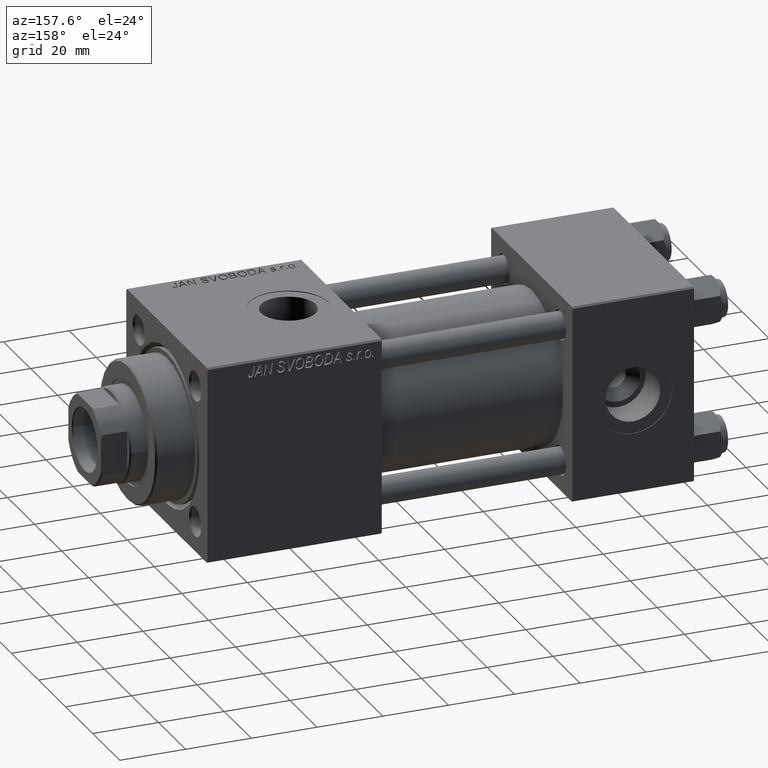
[diagram: clean part render]
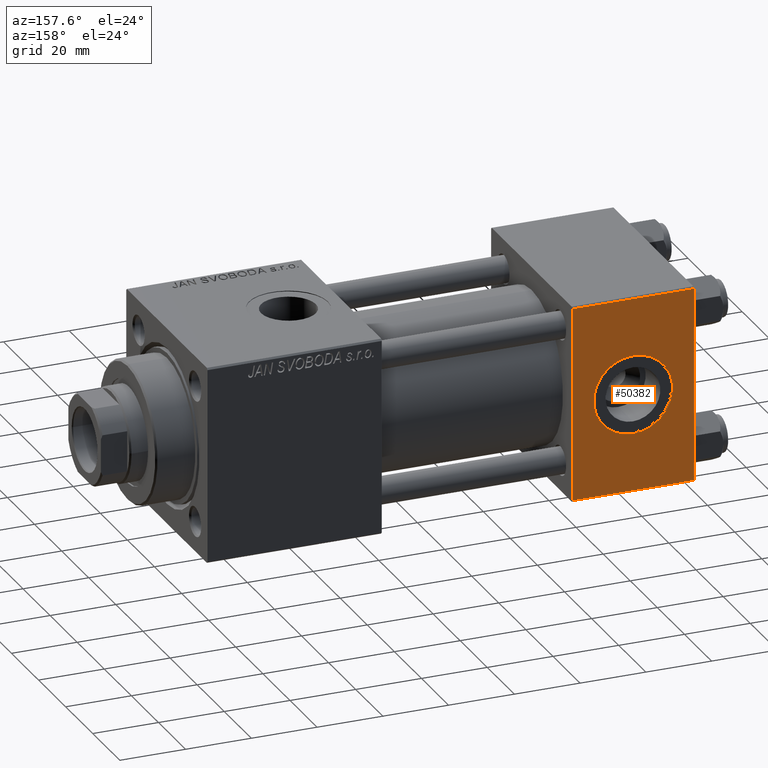
[diagram: same view with one face highlighted and labeled with its STEP entity id]
A machine part, auxiliary view. The second image highlights one B-rep face of the part: STEP entity #50382.
In plain terms, the highlighted planar face has unit normal (0, 1, 0).
Its self-contained STEP definition (entity closure, byte-faithful):
#1269 = FACE_OUTER_BOUND ( 'NONE', #46005, .T. ) ;
#2478 = ORIENTED_EDGE ( 'NONE', *, *, #12007, .F. ) ;
#4495 = VECTOR ( 'NONE', #8986, 1000.000000000000000 ) ;
#5471 = FACE_BOUND ( 'NONE', #38222, .T. ) ;
#5590 = VERTEX_POINT ( 'NONE', #18053 ) ;
#6399 = CARTESIAN_POINT ( 'NONE',  ( 0.000000000000000000, 29.99999999999999289, 30.00000000000000000 ) ) ;
#6563 = ORIENTED_EDGE ( 'NONE', *, *, #39055, .F. ) ;
#7653 = EDGE_CURVE ( 'NONE', #17237, #23298, #13505, .T. ) ;
#7730 = VERTEX_POINT ( 'NONE', #30013 ) ;
#8230 = CARTESIAN_POINT ( 'NONE',  ( 18.50000000000000000, 29.99999999999999289, 0.000000000000000000 ) ) ;
#8541 = ORIENTED_EDGE ( 'NONE', *, *, #31819, .F. ) ;
#8986 = DIRECTION ( 'NONE',  ( 0.000000000000000000, 0.000000000000000000, -1.000000000000000000 ) ) ;
#9134 = DIRECTION ( 'NONE',  ( 0.000000000000000000, -0.000000000000000000, 1.000000000000000000 ) ) ;
#11528 = DIRECTION ( 'NONE',  ( 0.000000000000000000, 1.000000000000000000, 0.000000000000000000 ) ) ;
#12007 = EDGE_CURVE ( 'NONE', #5590, #23298, #38669, .T. ) ;
#12482 = VERTEX_POINT ( 'NONE', #31692 ) ;
#12988 = DIRECTION ( 'NONE',  ( -1.000000000000000000, 0.000000000000000000, 0.000000000000000000 ) ) ;
#13505 = LINE ( 'NONE', #37637, #20725 ) ;
#15020 = VECTOR ( 'NONE', #50253, 1000.000000000000000 ) ;
#16019 = CARTESIAN_POINT ( 'NONE',  ( 18.50000000000000000, 29.99999999999999289, -12.00000000000000178 ) ) ;
#16539 = LINE ( 'NONE', #19424, #23024 ) ;
#17128 = AXIS2_PLACEMENT_3D ( 'NONE', #8230, #39483, #39992 ) ;
#17237 = VERTEX_POINT ( 'NONE', #25642 ) ;
#17512 = VERTEX_POINT ( 'NONE', #16019 ) ;
#18053 = CARTESIAN_POINT ( 'NONE',  ( 0.000000000000000000, 29.99999999999999289, 29.50000000000000000 ) ) ;
#18106 = AXIS2_PLACEMENT_3D ( 'NONE', #21463, #33278, #9134 ) ;
#19424 = CARTESIAN_POINT ( 'NONE',  ( 37.00000000000000000, 29.99999999999999289, 29.50000000000000000 ) ) ;
#20356 = CIRCLE ( 'NONE', #43822, 12.00000000000000178 ) ;
#20725 = VECTOR ( 'NONE', #12988, 1000.000000000000000 ) ;
#21463 = CARTESIAN_POINT ( 'NONE',  ( 37.00000000000000000, 29.99999999999999289, 30.00000000000000000 ) ) ;
#22975 = CIRCLE ( 'NONE', #17128, 12.00000000000000178 ) ;
#23024 = VECTOR ( 'NONE', #51473, 1000.000000000000000 ) ;
#23298 = VERTEX_POINT ( 'NONE', #39499 ) ;
#24981 = LINE ( 'NONE', #37578, #4495 ) ;
#25642 = CARTESIAN_POINT ( 'NONE',  ( 37.00000000000000000, 29.99999999999999289, -29.50000000000000000 ) ) ;
#27521 = DIRECTION ( 'NONE',  ( 0.000000000000000000, 0.000000000000000000, 1.000000000000000000 ) ) ;
#29077 = PLANE ( 'NONE',  #18106 ) ;
#29764 = EDGE_CURVE ( 'NONE', #12482, #17237, #24981, .T. ) ;
#29907 = EDGE_CURVE ( 'NONE', #5590, #12482, #16539, .T. ) ;
#30013 = CARTESIAN_POINT ( 'NONE',  ( 18.50000000000000000, 29.99999999999999289, 12.00000000000000178 ) ) ;
#30298 = ORIENTED_EDGE ( 'NONE', *, *, #29764, .T. ) ;
#31692 = CARTESIAN_POINT ( 'NONE',  ( 37.00000000000000000, 29.99999999999999289, 29.50000000000000000 ) ) ;
#31819 = EDGE_CURVE ( 'NONE', #7730, #17512, #22975, .T. ) ;
#33278 = DIRECTION ( 'NONE',  ( -0.000000000000000000, 1.000000000000000000, 0.000000000000000000 ) ) ;
#37578 = CARTESIAN_POINT ( 'NONE',  ( 37.00000000000000000, 29.99999999999999289, 30.00000000000000000 ) ) ;
#37637 = CARTESIAN_POINT ( 'NONE',  ( 37.00000000000000000, 29.99999999999999289, -29.50000000000000000 ) ) ;
#38222 = EDGE_LOOP ( 'NONE', ( #8541, #6563 ) ) ;
#38669 = LINE ( 'NONE', #6399, #15020 ) ;
#39055 = EDGE_CURVE ( 'NONE', #17512, #7730, #20356, .T. ) ;
#39483 = DIRECTION ( 'NONE',  ( 0.000000000000000000, 1.000000000000000000, 0.000000000000000000 ) ) ;
#39499 = CARTESIAN_POINT ( 'NONE',  ( 0.000000000000000000, 29.99999999999999289, -29.50000000000000000 ) ) ;
#39992 = DIRECTION ( 'NONE',  ( 0.000000000000000000, 0.000000000000000000, 1.000000000000000000 ) ) ;
#40597 = ORIENTED_EDGE ( 'NONE', *, *, #7653, .T. ) ;
#41535 = ORIENTED_EDGE ( 'NONE', *, *, #29907, .T. ) ;
#42505 = CARTESIAN_POINT ( 'NONE',  ( 18.50000000000000000, 29.99999999999999289, 0.000000000000000000 ) ) ;
#43822 = AXIS2_PLACEMENT_3D ( 'NONE', #42505, #11528, #27521 ) ;
#46005 = EDGE_LOOP ( 'NONE', ( #30298, #40597, #2478, #41535 ) ) ;
#50253 = DIRECTION ( 'NONE',  ( 0.000000000000000000, 0.000000000000000000, -1.000000000000000000 ) ) ;
#50382 = ADVANCED_FACE ( 'NONE', ( #5471, #1269 ), #29077, .T. ) ;
#51473 = DIRECTION ( 'NONE',  ( 1.000000000000000000, 0.000000000000000000, 0.000000000000000000 ) ) ;